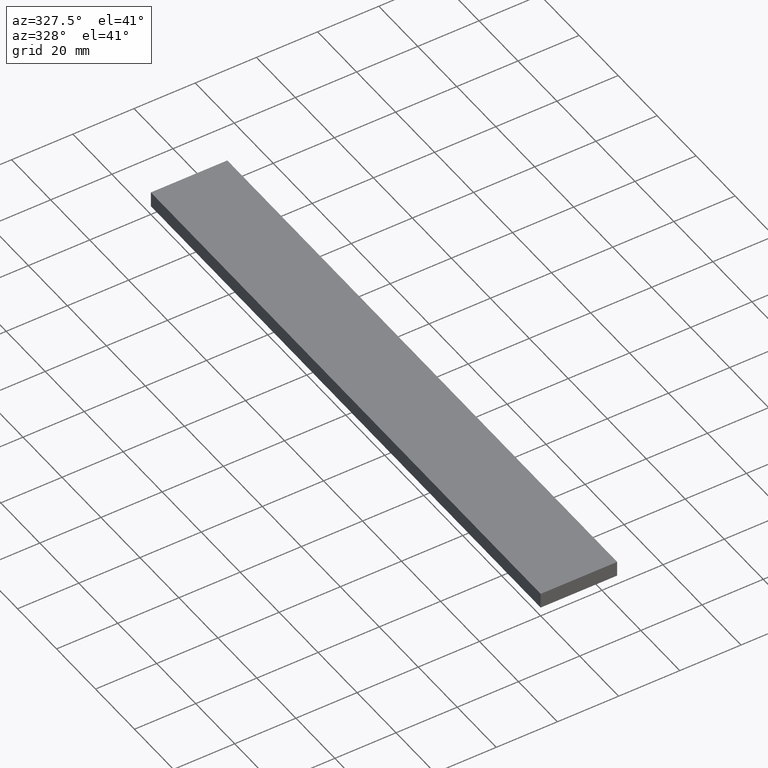
[diagram: clean part render]
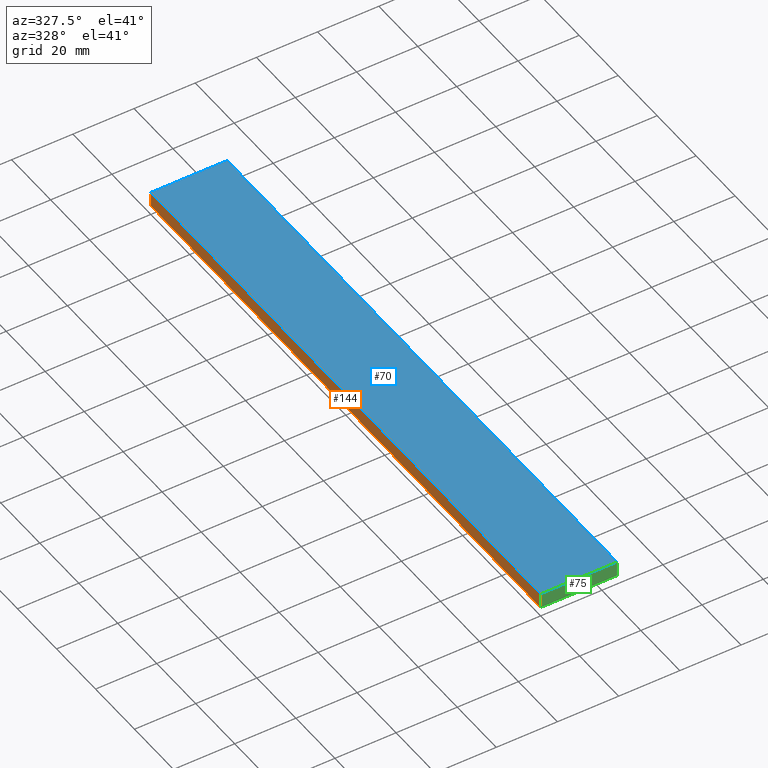
[diagram: same view with three faces highlighted in distinct colors, each labeled with its STEP entity id]
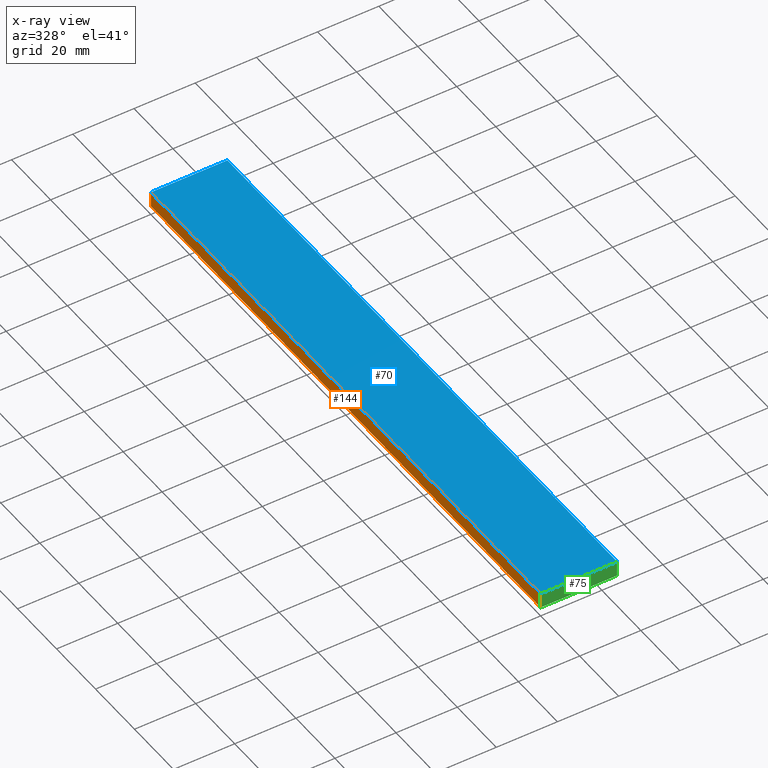
[diagram: x-ray of the same camera — body ghosted, the three highlighted faces saturated]
A machine part, auxiliary view with three faces highlighted in distinct colors.
The next image is the same camera in x-ray (body ghosted, the three faces saturated) — at least one of them is partly hidden behind the body in this view.
Their STEP definitions:

[orange] entity #144 — the highlighted planar face has unit normal (1, 0, 0).
#4 = ORIENTED_EDGE ( 'NONE', *, *, #191, .F. ) ;
#12 = DIRECTION ( 'NONE',  ( 0.0000000000000000000, -1.000000000000000000, 0.0000000000000000000 ) ) ;
#13 = DIRECTION ( 'NONE',  ( 0.0000000000000000000, -1.000000000000000000, 0.0000000000000000000 ) ) ;
#19 = EDGE_CURVE ( 'NONE', #49, #147, #154, .T. ) ;
#23 = ORIENTED_EDGE ( 'NONE', *, *, #187, .T. ) ;
#34 = VECTOR ( 'NONE', #12, 1000.000000000000000 ) ;
#49 = VERTEX_POINT ( 'NONE', #199 ) ;
#52 = ORIENTED_EDGE ( 'NONE', *, *, #19, .T. ) ;
#57 = FACE_OUTER_BOUND ( 'NONE', #172, .T. ) ;
#60 = VERTEX_POINT ( 'NONE', #184 ) ;
#68 = VECTOR ( 'NONE', #198, 1000.000000000000000 ) ;
#81 = CARTESIAN_POINT ( 'NONE',  ( 0.0000000000000000000, 1000.000000000000000, 0.0000000000000000000 ) ) ;
#112 = CARTESIAN_POINT ( 'NONE',  ( 0.0000000000000000000, 1000.000000000000000, 5.000000000000000000 ) ) ;
#114 = LINE ( 'NONE', #182, #174 ) ;
#127 = CARTESIAN_POINT ( 'NONE',  ( 0.0000000000000000000, 0.0000000000000000000, 0.0000000000000000000 ) ) ;
#144 = ADVANCED_FACE ( 'NONE', ( #57 ), #166, .F. ) ;
#147 = VERTEX_POINT ( 'NONE', #127 ) ;
#154 = LINE ( 'NONE', #81, #34 ) ;
#158 = DIRECTION ( 'NONE',  ( 0.0000000000000000000, 0.0000000000000000000, 1.000000000000000000 ) ) ;
#162 = LINE ( 'NONE', #216, #68 ) ;
#166 = PLANE ( 'NONE',  #181 ) ;
#167 = VECTOR ( 'NONE', #13, 1000.000000000000000 ) ;
#172 = EDGE_LOOP ( 'NONE', ( #23, #190, #4, #52 ) ) ;
#174 = VECTOR ( 'NONE', #158, 1000.000000000000000 ) ;
#176 = DIRECTION ( 'NONE',  ( 1.000000000000000000, 0.0000000000000000000, 0.0000000000000000000 ) ) ;
#179 = EDGE_CURVE ( 'NONE', #208, #60, #213, .T. ) ;
#181 = AXIS2_PLACEMENT_3D ( 'NONE', #220, #176, #202 ) ;
#182 = CARTESIAN_POINT ( 'NONE',  ( 0.0000000000000000000, 200.0000000000000000, 0.0000000000000000000 ) ) ;
#184 = CARTESIAN_POINT ( 'NONE',  ( 0.0000000000000000000, 0.0000000000000000000, 5.000000000000000000 ) ) ;
#187 = EDGE_CURVE ( 'NONE', #147, #60, #162, .T. ) ;
#190 = ORIENTED_EDGE ( 'NONE', *, *, #179, .F. ) ;
#191 = EDGE_CURVE ( 'NONE', #49, #208, #114, .T. ) ;
#198 = DIRECTION ( 'NONE',  ( 0.0000000000000000000, 0.0000000000000000000, 1.000000000000000000 ) ) ;
#199 = CARTESIAN_POINT ( 'NONE',  ( 0.0000000000000000000, 200.0000000000000000, 0.0000000000000000000 ) ) ;
#202 = DIRECTION ( 'NONE',  ( 0.0000000000000000000, 0.0000000000000000000, -1.000000000000000000 ) ) ;
#208 = VERTEX_POINT ( 'NONE', #223 ) ;
#213 = LINE ( 'NONE', #112, #167 ) ;
#216 = CARTESIAN_POINT ( 'NONE',  ( 0.0000000000000000000, 0.0000000000000000000, 0.0000000000000000000 ) ) ;
#220 = CARTESIAN_POINT ( 'NONE',  ( 0.0000000000000000000, 1000.000000000000000, 0.0000000000000000000 ) ) ;
#223 = CARTESIAN_POINT ( 'NONE',  ( 0.0000000000000000000, 200.0000000000000000, 5.000000000000000000 ) ) ;

[blue] entity #70 — the highlighted planar face has unit normal (0, 0, -1).
#6 = EDGE_CURVE ( 'NONE', #119, #28, #224, .T. ) ;
#11 = AXIS2_PLACEMENT_3D ( 'NONE', #56, #233, #107 ) ;
#13 = DIRECTION ( 'NONE',  ( 0.0000000000000000000, -1.000000000000000000, 0.0000000000000000000 ) ) ;
#18 = ORIENTED_EDGE ( 'NONE', *, *, #212, .F. ) ;
#25 = DIRECTION ( 'NONE',  ( 1.000000000000000000, 0.0000000000000000000, 0.0000000000000000000 ) ) ;
#26 = LINE ( 'NONE', #121, #180 ) ;
#28 = VERTEX_POINT ( 'NONE', #117 ) ;
#39 = EDGE_LOOP ( 'NONE', ( #238, #85, #18, #53 ) ) ;
#47 = VECTOR ( 'NONE', #59, 1000.000000000000000 ) ;
#53 = ORIENTED_EDGE ( 'NONE', *, *, #179, .T. ) ;
#56 = CARTESIAN_POINT ( 'NONE',  ( 0.0000000000000000000, 1000.000000000000000, 5.000000000000000000 ) ) ;
#59 = DIRECTION ( 'NONE',  ( 0.0000000000000000000, -1.000000000000000000, 0.0000000000000000000 ) ) ;
#60 = VERTEX_POINT ( 'NONE', #184 ) ;
#70 = ADVANCED_FACE ( 'NONE', ( #95 ), #165, .F. ) ;
#82 = CARTESIAN_POINT ( 'NONE',  ( 25.00000000000000000, 200.0000000000000000, 5.000000000000000000 ) ) ;
#85 = ORIENTED_EDGE ( 'NONE', *, *, #6, .F. ) ;
#92 = LINE ( 'NONE', #101, #168 ) ;
#95 = FACE_OUTER_BOUND ( 'NONE', #39, .T. ) ;
#101 = CARTESIAN_POINT ( 'NONE',  ( 0.0000000000000000000, 0.0000000000000000000, 5.000000000000000000 ) ) ;
#107 = DIRECTION ( 'NONE',  ( -1.000000000000000000, 0.0000000000000000000, 0.0000000000000000000 ) ) ;
#112 = CARTESIAN_POINT ( 'NONE',  ( 0.0000000000000000000, 1000.000000000000000, 5.000000000000000000 ) ) ;
#117 = CARTESIAN_POINT ( 'NONE',  ( 25.00000000000000000, 0.0000000000000000000, 5.000000000000000000 ) ) ;
#119 = VERTEX_POINT ( 'NONE', #82 ) ;
#121 = CARTESIAN_POINT ( 'NONE',  ( 0.0000000000000000000, 200.0000000000000000, 5.000000000000000000 ) ) ;
#165 = PLANE ( 'NONE',  #11 ) ;
#167 = VECTOR ( 'NONE', #13, 1000.000000000000000 ) ;
#168 = VECTOR ( 'NONE', #25, 1000.000000000000000 ) ;
#178 = DIRECTION ( 'NONE',  ( 1.000000000000000000, 0.0000000000000000000, 0.0000000000000000000 ) ) ;
#179 = EDGE_CURVE ( 'NONE', #208, #60, #213, .T. ) ;
#180 = VECTOR ( 'NONE', #178, 1000.000000000000000 ) ;
#184 = CARTESIAN_POINT ( 'NONE',  ( 0.0000000000000000000, 0.0000000000000000000, 5.000000000000000000 ) ) ;
#208 = VERTEX_POINT ( 'NONE', #223 ) ;
#212 = EDGE_CURVE ( 'NONE', #208, #119, #26, .T. ) ;
#213 = LINE ( 'NONE', #112, #167 ) ;
#218 = CARTESIAN_POINT ( 'NONE',  ( 25.00000000000000000, 1000.000000000000000, 5.000000000000000000 ) ) ;
#223 = CARTESIAN_POINT ( 'NONE',  ( 0.0000000000000000000, 200.0000000000000000, 5.000000000000000000 ) ) ;
#224 = LINE ( 'NONE', #218, #47 ) ;
#232 = EDGE_CURVE ( 'NONE', #60, #28, #92, .T. ) ;
#233 = DIRECTION ( 'NONE',  ( 0.0000000000000000000, 0.0000000000000000000, -1.000000000000000000 ) ) ;
#238 = ORIENTED_EDGE ( 'NONE', *, *, #232, .T. ) ;

[green] entity #75 — the highlighted planar face has unit normal (0, 1, 0).
#5 = CARTESIAN_POINT ( 'NONE',  ( 25.00000000000000000, 0.0000000000000000000, 5.000000000000000000 ) ) ;
#14 = EDGE_LOOP ( 'NONE', ( #140, #151, #163, #15 ) ) ;
#15 = ORIENTED_EDGE ( 'NONE', *, *, #232, .F. ) ;
#20 = LINE ( 'NONE', #116, #227 ) ;
#21 = DIRECTION ( 'NONE',  ( 1.000000000000000000, 0.0000000000000000000, 0.0000000000000000000 ) ) ;
#25 = DIRECTION ( 'NONE',  ( 1.000000000000000000, 0.0000000000000000000, 0.0000000000000000000 ) ) ;
#28 = VERTEX_POINT ( 'NONE', #117 ) ;
#31 = DIRECTION ( 'NONE',  ( -0.0000000000000000000, 1.000000000000000000, 0.0000000000000000000 ) ) ;
#42 = DIRECTION ( 'NONE',  ( 0.0000000000000000000, 0.0000000000000000000, -1.000000000000000000 ) ) ;
#50 = AXIS2_PLACEMENT_3D ( 'NONE', #76, #31, #21 ) ;
#60 = VERTEX_POINT ( 'NONE', #184 ) ;
#68 = VECTOR ( 'NONE', #198, 1000.000000000000000 ) ;
#75 = ADVANCED_FACE ( 'NONE', ( #93 ), #164, .F. ) ;
#76 = CARTESIAN_POINT ( 'NONE',  ( 0.0000000000000000000, 0.0000000000000000000, 0.0000000000000000000 ) ) ;
#92 = LINE ( 'NONE', #101, #168 ) ;
#93 = FACE_OUTER_BOUND ( 'NONE', #14, .T. ) ;
#101 = CARTESIAN_POINT ( 'NONE',  ( 0.0000000000000000000, 0.0000000000000000000, 5.000000000000000000 ) ) ;
#116 = CARTESIAN_POINT ( 'NONE',  ( 25.00000000000000000, 0.0000000000000000000, 0.0000000000000000000 ) ) ;
#117 = CARTESIAN_POINT ( 'NONE',  ( 25.00000000000000000, 0.0000000000000000000, 5.000000000000000000 ) ) ;
#127 = CARTESIAN_POINT ( 'NONE',  ( 0.0000000000000000000, 0.0000000000000000000, 0.0000000000000000000 ) ) ;
#132 = VECTOR ( 'NONE', #42, 1000.000000000000000 ) ;
#139 = DIRECTION ( 'NONE',  ( -1.000000000000000000, 0.0000000000000000000, 0.0000000000000000000 ) ) ;
#140 = ORIENTED_EDGE ( 'NONE', *, *, #187, .F. ) ;
#147 = VERTEX_POINT ( 'NONE', #127 ) ;
#151 = ORIENTED_EDGE ( 'NONE', *, *, #200, .F. ) ;
#162 = LINE ( 'NONE', #216, #68 ) ;
#163 = ORIENTED_EDGE ( 'NONE', *, *, #205, .F. ) ;
#164 = PLANE ( 'NONE',  #50 ) ;
#168 = VECTOR ( 'NONE', #25, 1000.000000000000000 ) ;
#184 = CARTESIAN_POINT ( 'NONE',  ( 0.0000000000000000000, 0.0000000000000000000, 5.000000000000000000 ) ) ;
#187 = EDGE_CURVE ( 'NONE', #147, #60, #162, .T. ) ;
#196 = CARTESIAN_POINT ( 'NONE',  ( 25.00000000000000000, 0.0000000000000000000, 0.0000000000000000000 ) ) ;
#198 = DIRECTION ( 'NONE',  ( 0.0000000000000000000, 0.0000000000000000000, 1.000000000000000000 ) ) ;
#200 = EDGE_CURVE ( 'NONE', #231, #147, #20, .T. ) ;
#205 = EDGE_CURVE ( 'NONE', #28, #231, #221, .T. ) ;
#216 = CARTESIAN_POINT ( 'NONE',  ( 0.0000000000000000000, 0.0000000000000000000, 0.0000000000000000000 ) ) ;
#221 = LINE ( 'NONE', #5, #132 ) ;
#227 = VECTOR ( 'NONE', #139, 1000.000000000000000 ) ;
#231 = VERTEX_POINT ( 'NONE', #196 ) ;
#232 = EDGE_CURVE ( 'NONE', #60, #28, #92, .T. ) ;